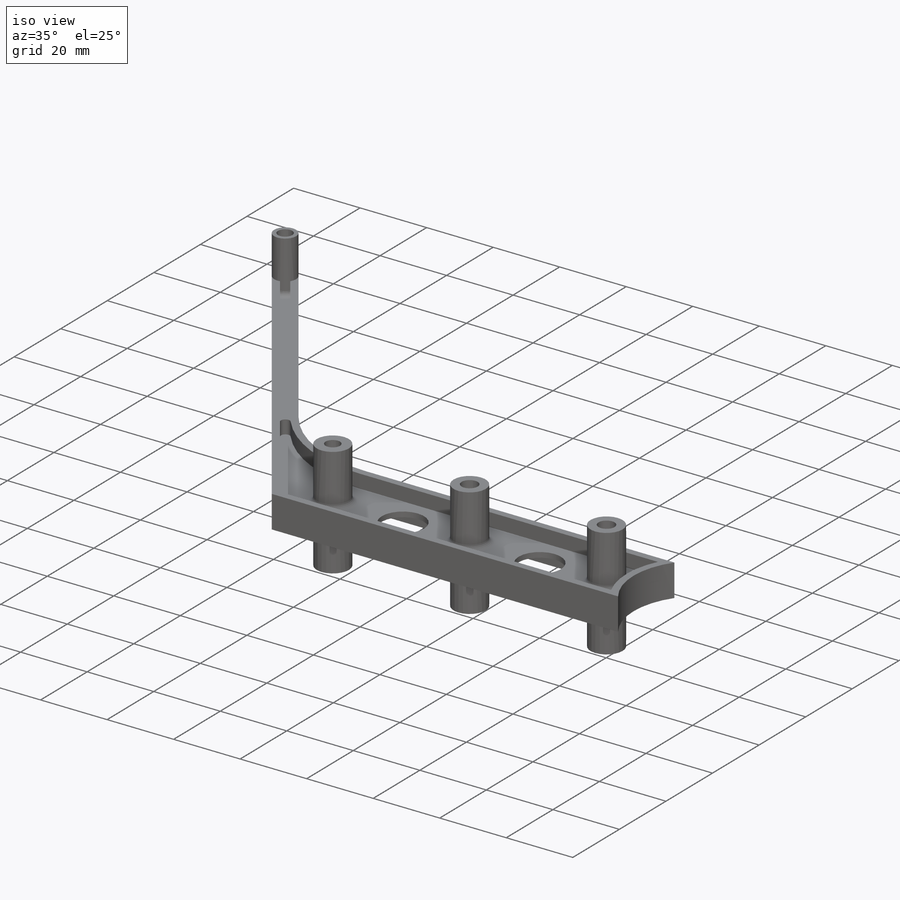
[diagram: iso view]
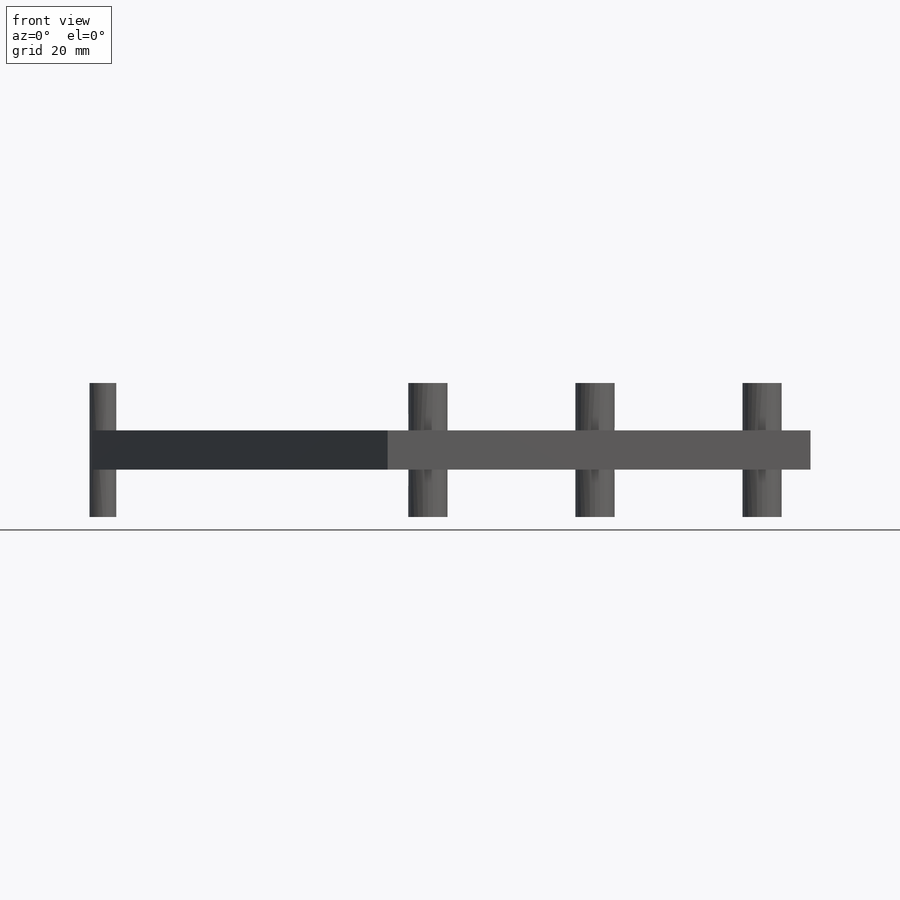
[diagram: front view]
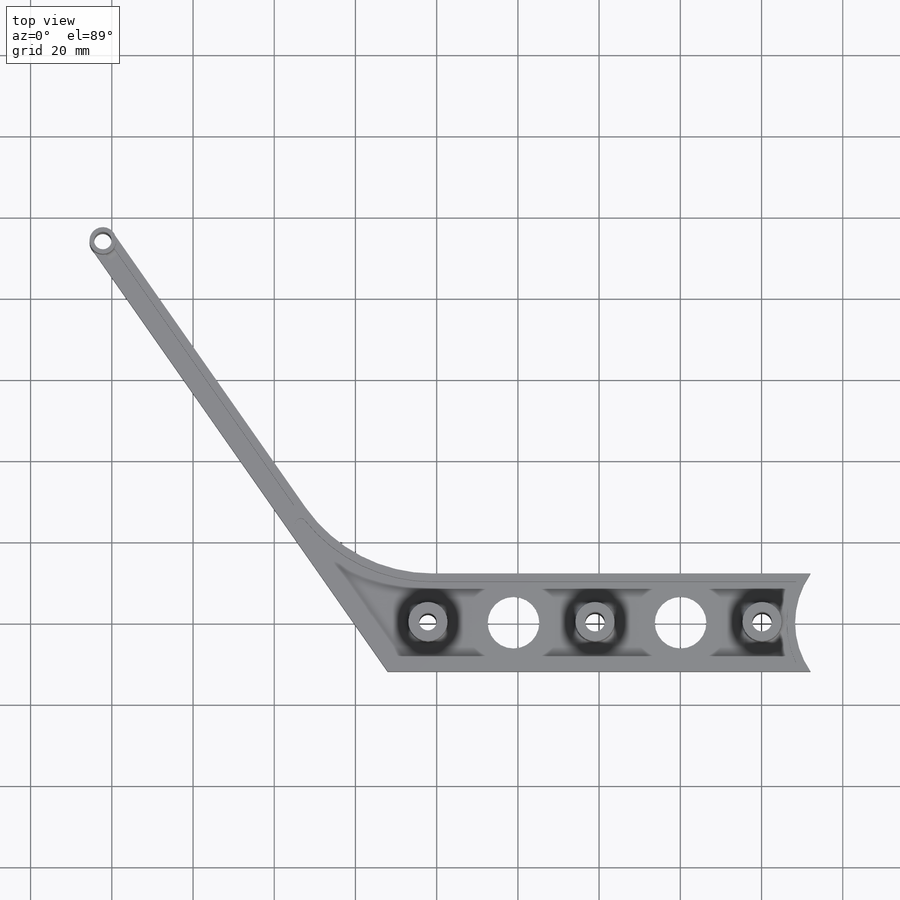
[diagram: top view]
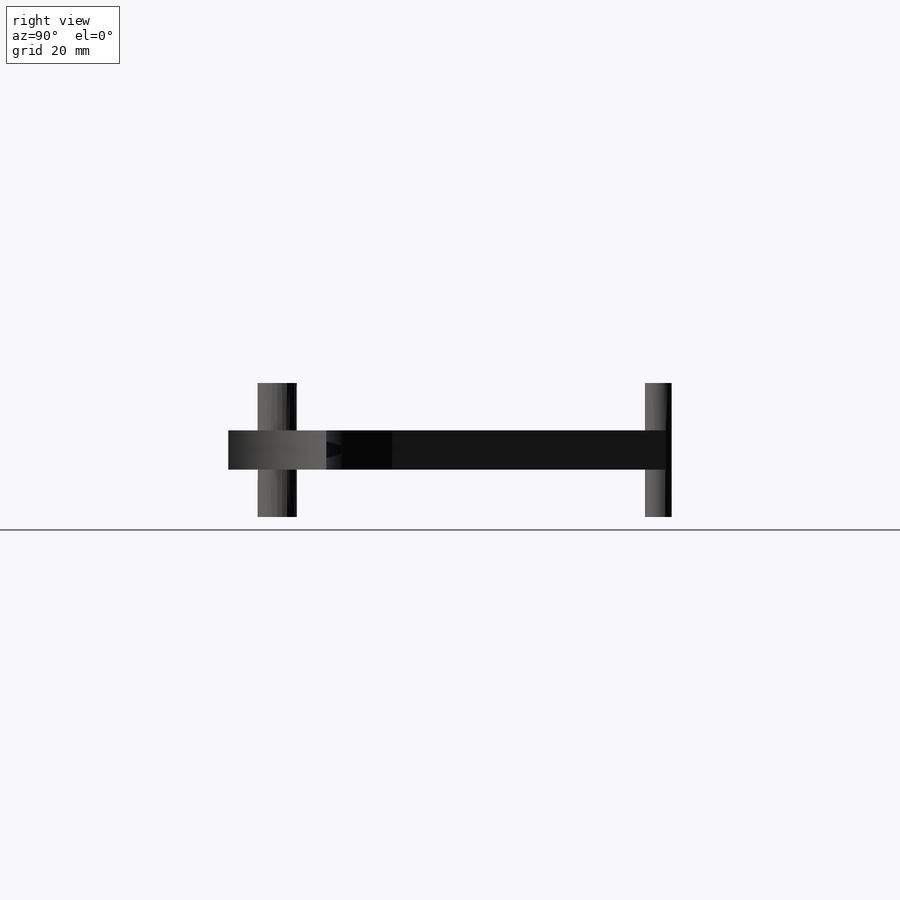
[diagram: right view]
SOLIDWORKS PART (.sldprt)
format: sldprt  version: not decoded by parser v0  size: 375,296 bytes
history: native  units: mm
features: sketch x7, cut_extrude x4, extrude x3, fillet x3, material x1, mirror x1 (+13 scaffold rows collapsed)
feature tree (32):
  scaffold x13  (default folders/planes/origin — collapsed)
  material  "Material <not specified>"
  sketch  "Sketch1"  dims[D1=24.13mm D2=104.14mm]
  extrude  "Boss-Extrude1"  Depth=9.652mm
  sketch  "Sketch2"  dims[D1=3.81mm]
  cut_extrude  "flipper_Cutout"  [1 undecoded]
  sketch  "Sketch3"  dims[c1.D1=~77.100211mm c2.D1=125.0deg c2.D2=127.0mm c2.D3=6.604mm]
  extrude  "Boss-Extrude2"  [1 undecoded]
  fillet  "Fillet1"  Radius=38.1mm
  sketch  "Sketch5"  dims[D1=2.032mm D2=1.27mm D3=1.27mm]
  cut_extrude  "Cut-Extrude2"  Depth=4.064mm
  fillet  "Fillet4"  Radius=1.27mm
  mirror  "Mirror1"
  sketch  "Sketch6"  dims[c1.D1=9.652mm c1.D2=4.826mm c1.D6=4.318mm c1.D7=6.604mm c1.D3=41.148mm c1.D4=6.223mm c2.D3=41.148mm c2.D4=41.148mm c2.D5=8.128mm]
  extrude  "posts"  Depth=33.02mm
  sketch  "Sketch8"
  cut_extrude  "Cut-Extrude4"  [1 undecoded]
  fillet  "Fillet3"  Radius=1.524mm
  sketch  "Sketch7"  dims[D1=12.7mm]
  cut_extrude  "Cut-Extrude3"  [1 undecoded]
decode coverage: 12 of 18 modeling features carry decoded parameters
note: ~ marks probable driven/reference dimensions
note: 4 parameter values undecoded
summary: no parameter record found for 4 features
note: suppression state not decoded; provenance and decode notes live in map.json
